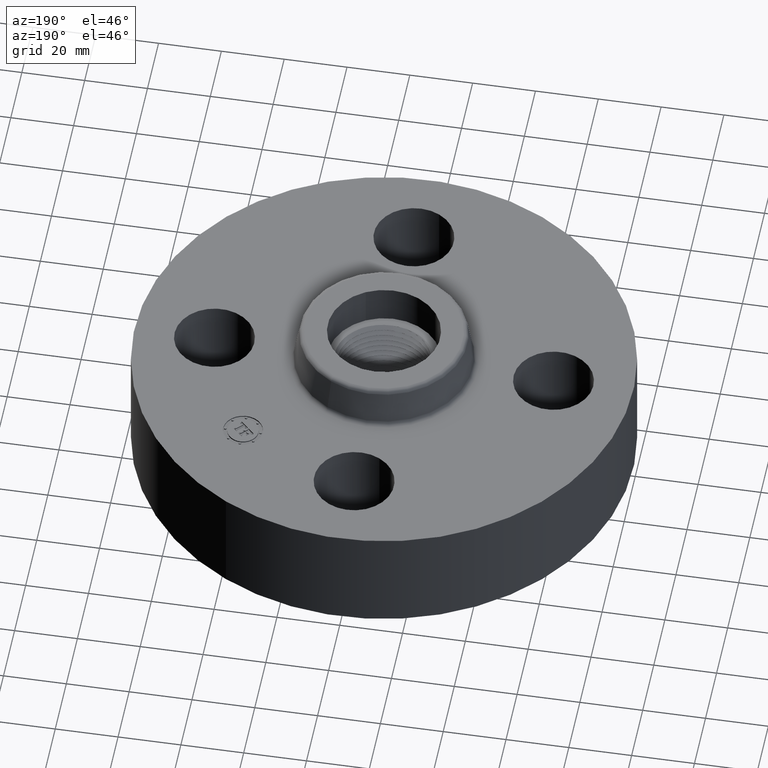
[diagram: clean part render]
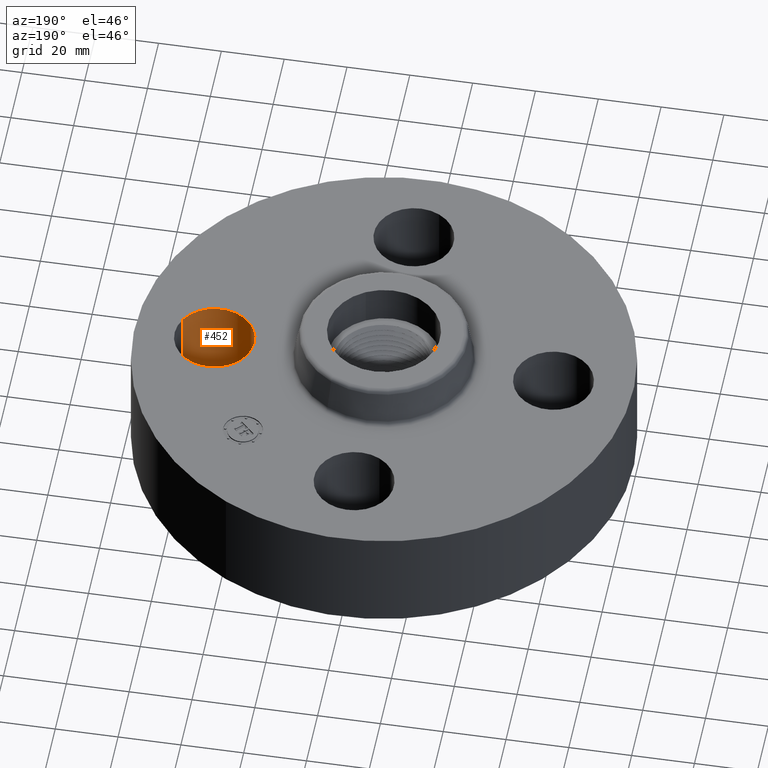
[diagram: same view with one face highlighted and labeled with its STEP entity id]
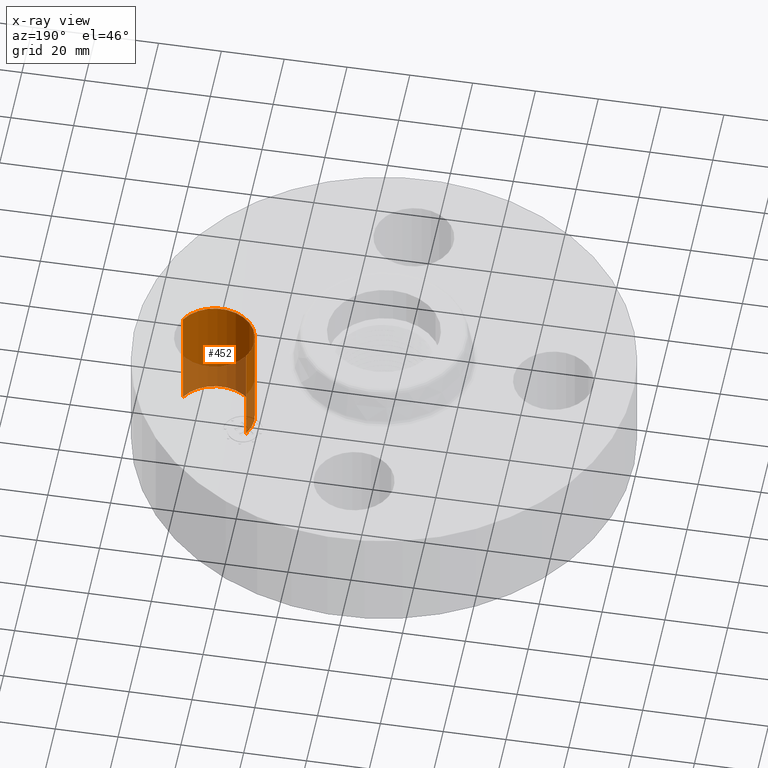
[diagram: x-ray of the same camera — body ghosted, the highlighted face saturated]
A machine part, auxiliary view. The second image highlights one B-rep face of the part: STEP entity #452.
The next image is the same camera in x-ray: the body ghosted, the highlighted face saturated — about 34% of this face is hidden behind the body in this view.
In plain terms, the highlighted cylindrical surface (partial cylindrical patch) has radius 12.7 mm, axis along (0, -0, -1).
Its self-contained STEP definition (entity closure, byte-faithful):
#296=AXIS2_PLACEMENT_3D('Circle Axis2P3D',#294,#295,$) ;
#413=AXIS2_PLACEMENT_3D('Cylinder Axis2P3D',#410,#411,#412) ;
#443=AXIS2_PLACEMENT_3D('Circle Axis2P3D',#441,#442,$) ;
#294=CARTESIAN_POINT('Axis2P3D Location',(2.12500000001,1.39870617276E-016,0.)) ;
#298=CARTESIAN_POINT('Vertex',(2.56379128096,-0.239712769303,0.)) ;
#300=CARTESIAN_POINT('Vertex',(1.68620871906,0.239712769303,0.)) ;
#410=CARTESIAN_POINT('Axis2P3D Location',(2.12500000001,0.,1.37606299213)) ;
#415=CARTESIAN_POINT('Line Origine',(1.68620871906,0.239712769303,0.690000000003)) ;
#419=CARTESIAN_POINT('Vertex',(1.68620871906,0.239712769303,1.38000000001)) ;
#422=CARTESIAN_POINT('Line Origine',(2.56379128096,-0.239712769303,0.690000000003)) ;
#426=CARTESIAN_POINT('Vertex',(2.56379128096,-0.239712769303,1.38000000001)) ;
#441=CARTESIAN_POINT('Axis2P3D Location',(2.12500000001,0.,1.38000000001)) ;
#295=DIRECTION('Axis2P3D Direction',(0.,0.,-0.0393700787402)) ;
#411=DIRECTION('Axis2P3D Direction',(0.,-0.,-0.0393700787402)) ;
#412=DIRECTION('Axis2P3D XDirection',(0.0345504945626,-0.0188750212049,0.)) ;
#416=DIRECTION('Vector Direction',(0.,0.,-0.0393700787402)) ;
#423=DIRECTION('Vector Direction',(0.,0.,-0.0393700787402)) ;
#442=DIRECTION('Axis2P3D Direction',(0.,-0.,-0.0393700787402)) ;
#417=VECTOR('Line Direction',#416,0.0393700787402) ;
#424=VECTOR('Line Direction',#423,0.0393700787402) ;
#447=ORIENTED_EDGE('',*,*,#428,.F.) ;
#448=ORIENTED_EDGE('',*,*,#302,.T.) ;
#449=ORIENTED_EDGE('',*,*,#421,.T.) ;
#450=ORIENTED_EDGE('',*,*,#445,.F.) ;
#452=ADVANCED_FACE('PartBody',(#451),#414,.F.) ;
#297=CIRCLE('generated circle',#296,0.500000000002) ;
#444=CIRCLE('generated circle',#443,0.500000000002) ;
#414=CYLINDRICAL_SURFACE('generated cylinder',#413,0.500000000002) ;
#302=EDGE_CURVE('',#299,#301,#297,.T.) ;
#421=EDGE_CURVE('',#301,#420,#418,.F.) ;
#428=EDGE_CURVE('',#299,#427,#425,.F.) ;
#445=EDGE_CURVE('',#427,#420,#444,.T.) ;
#446=EDGE_LOOP('',(#447,#448,#449,#450)) ;
#451=FACE_OUTER_BOUND('',#446,.T.) ;
#418=LINE('Line',#415,#417) ;
#425=LINE('Line',#422,#424) ;
#299=VERTEX_POINT('',#298) ;
#301=VERTEX_POINT('',#300) ;
#420=VERTEX_POINT('',#419) ;
#427=VERTEX_POINT('',#426) ;